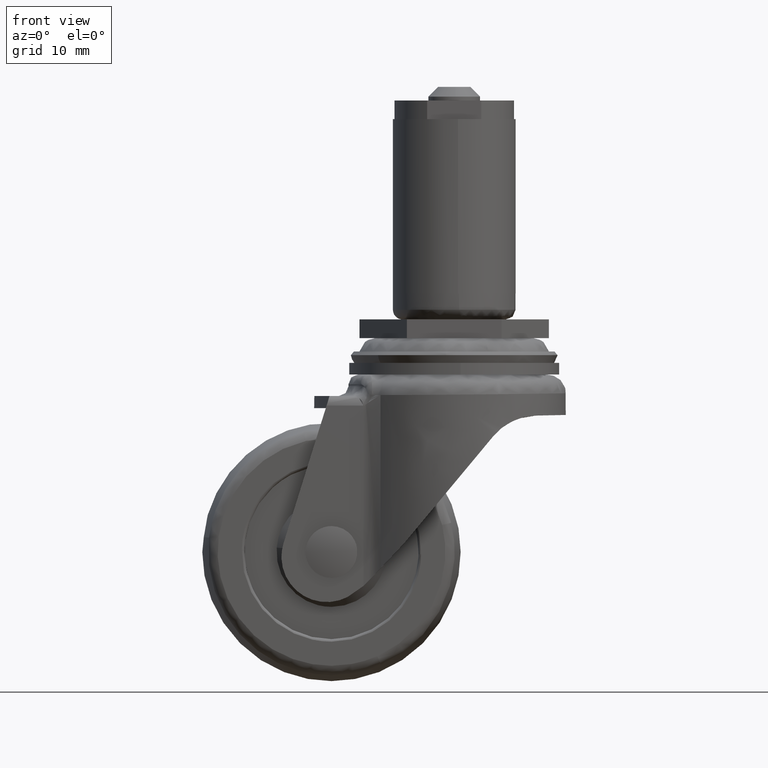
[diagram: clean part render]
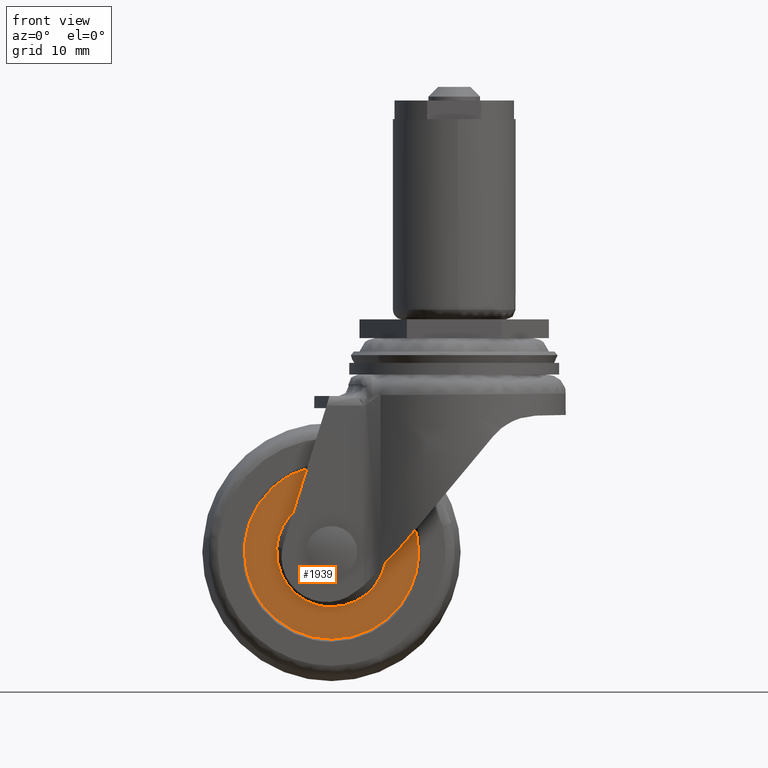
[diagram: same view with one face highlighted and labeled with its STEP entity id]
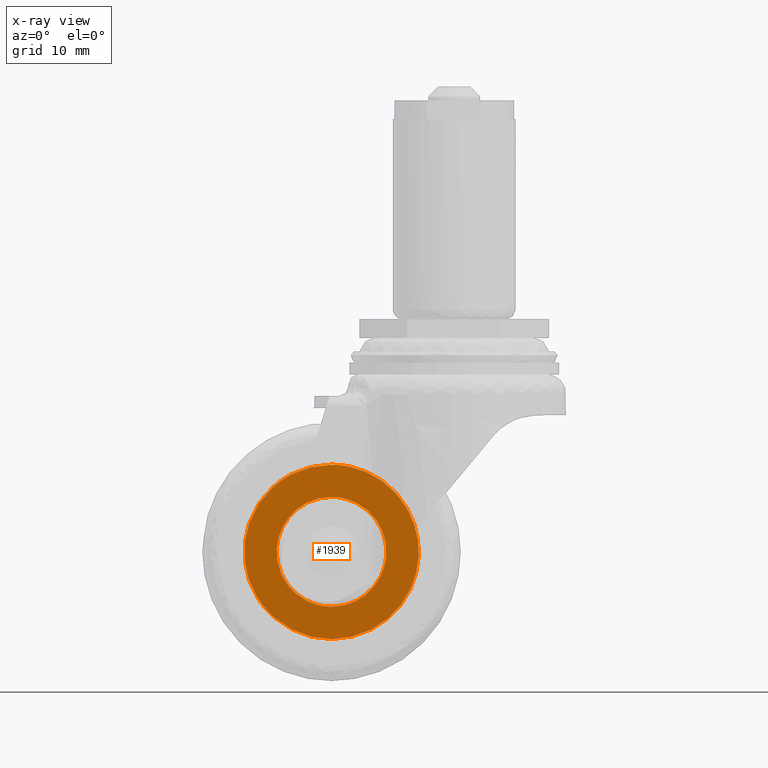
[diagram: x-ray of the same camera — body ghosted, the highlighted face saturated]
A machine part, front view. The second image highlights one B-rep face of the part: STEP entity #1939.
The next image is the same camera in x-ray: the body ghosted, the highlighted face saturated — about 0% of this face is hidden behind the body in this view.
In plain terms, the highlighted face is a freeform B-spline surface patch.
Its self-contained STEP definition (entity closure, byte-faithful):
#62=CARTESIAN_POINT('',(-19.0,-7.999986000000001,-44.500008999999991));
#63=VERTEX_POINT('',#62);
#64=CARTESIAN_POINT('',(-10.526188706410480,-7.999985999961256,-36.666898412411477));
#65=VERTEX_POINT('',#64);
#66=CARTESIAN_POINT('',(-19.0,-7.999986000000001,-44.500008999999991));
#67=CARTESIAN_POINT('',(-11.142667879985893,-7.999986000000002,-44.500008999999991));
#68=CARTESIAN_POINT('',(-10.526188706410480,-7.999985999961256,-36.666898412411484));
#76=(BOUNDED_CURVE()B_SPLINE_CURVE(2,(#66,#67,#68),.UNSPECIFIED.,.F.,.U.)B_SPLINE_CURVE_WITH_KNOTS((3,3),(0.0,0.236331300620862),.UNSPECIFIED.)CURVE()GEOMETRIC_REPRESENTATION_ITEM()RATIONAL_B_SPLINE_CURVE((1.0,0.723120658619144,0.969723356146972))REPRESENTATION_ITEM(''));
#77=EDGE_CURVE('',#63,#65,#76,.T.);
#118=CARTESIAN_POINT('',(-27.473811293589510,-7.999985999961258,-35.333091587588932));
#119=VERTEX_POINT('',#118);
#125=CARTESIAN_POINT('',(-27.473811293589510,-7.999985999961258,-35.333091587588925));
#126=CARTESIAN_POINT('',(-27.500013999999787,-7.999986000000001,-35.666028540077932));
#127=CARTESIAN_POINT('',(-27.500013999999791,-7.999986000000001,-35.999995000000197));
#128=CARTESIAN_POINT('',(-27.500013999999783,-7.999986000000002,-44.500008999999999));
#129=CARTESIAN_POINT('',(-19.0,-7.999986000000001,-44.500008999999991));
#137=(BOUNDED_CURVE()B_SPLINE_CURVE(2,(#125,#126,#127,#128,#129),.UNSPECIFIED.,.F.,.U.)B_SPLINE_CURVE_WITH_KNOTS((3,2,3),(0.736331300620862,0.750000000000000,1.0),.UNSPECIFIED.)CURVE()GEOMETRIC_REPRESENTATION_ITEM()RATIONAL_B_SPLINE_CURVE((0.969723356146971,0.983986122567403,1.0,0.707106781186547,1.0))REPRESENTATION_ITEM(''));
#138=EDGE_CURVE('',#119,#63,#137,.T.);
#161=CARTESIAN_POINT('',(-19.0,-7.999986000000001,-27.499981000000410));
#162=VERTEX_POINT('',#161);
#163=CARTESIAN_POINT('',(-10.526188706410480,-7.999985999961256,-36.666898412411484));
#164=CARTESIAN_POINT('',(-10.499986000000209,-7.999986000000001,-36.333961459922484));
#165=CARTESIAN_POINT('',(-10.499986000000209,-7.999986000000001,-35.999995000000197));
#166=CARTESIAN_POINT('',(-10.499986000000211,-7.999986000000002,-27.499981000000417));
#167=CARTESIAN_POINT('',(-19.0,-7.999986000000001,-27.499981000000410));
#175=(BOUNDED_CURVE()B_SPLINE_CURVE(2,(#163,#164,#165,#166,#167),.UNSPECIFIED.,.F.,.U.)B_SPLINE_CURVE_WITH_KNOTS((3,2,3),(0.236331300620862,0.250000000000000,0.500000000000000),.UNSPECIFIED.)CURVE()GEOMETRIC_REPRESENTATION_ITEM()RATIONAL_B_SPLINE_CURVE((0.969723356146972,0.983986122567404,1.0,0.707106781186547,1.0))REPRESENTATION_ITEM(''));
#176=EDGE_CURVE('',#65,#162,#175,.T.);
#178=CARTESIAN_POINT('',(-19.0,-7.999986000000001,-27.499981000000410));
#179=CARTESIAN_POINT('',(-26.857332120014100,-7.999986000000002,-27.499981000000414));
#180=CARTESIAN_POINT('',(-27.473811293589517,-7.999985999961258,-35.333091587588932));
#188=(BOUNDED_CURVE()B_SPLINE_CURVE(2,(#178,#179,#180),.UNSPECIFIED.,.F.,.U.)B_SPLINE_CURVE_WITH_KNOTS((3,3),(0.500000000000000,0.736331300620862),.UNSPECIFIED.)CURVE()GEOMETRIC_REPRESENTATION_ITEM()RATIONAL_B_SPLINE_CURVE((1.0,0.723120658619144,0.969723356146971))REPRESENTATION_ITEM(''));
#189=EDGE_CURVE('',#162,#119,#188,.T.);
#248=CARTESIAN_POINT('',(-27.833593508534911,-7.999986000002050,-46.208716943816611));
#249=VERTEX_POINT('',#248);
#250=CARTESIAN_POINT('',(-19.0,-7.999986000000001,-49.500008999999999));
#251=VERTEX_POINT('',#250);
#252=CARTESIAN_POINT('',(-27.833593508534918,-7.999986000002050,-46.208716943816604));
#253=CARTESIAN_POINT('',(-24.029944924863585,-7.999986000000001,-49.500008999999991));
#254=CARTESIAN_POINT('',(-19.0,-7.999986000000001,-49.500008999999999));
#262=(BOUNDED_CURVE()B_SPLINE_CURVE(2,(#252,#253,#254),.UNSPECIFIED.,.F.,.U.)B_SPLINE_CURVE_WITH_KNOTS((3,3),(0.885882135070162,1.0),.UNSPECIFIED.)CURVE()GEOMETRIC_REPRESENTATION_ITEM()RATIONAL_B_SPLINE_CURVE((0.854663299967336,0.866302604866324,1.0))REPRESENTATION_ITEM(''));
#263=EDGE_CURVE('',#249,#251,#262,.T.);
#334=CARTESIAN_POINT('',(-28.120476395702909,-7.999986000000001,-26.046739838214421));
#335=VERTEX_POINT('',#334);
#341=CARTESIAN_POINT('',(-19.0,-7.999986000000001,-22.499981000000400));
#342=VERTEX_POINT('',#341);
#343=CARTESIAN_POINT('',(-19.0,-7.999986000000001,-22.499981000000400));
#344=CARTESIAN_POINT('',(-24.249867648697691,-7.999986000000002,-22.499981000000407));
#345=CARTESIAN_POINT('',(-28.120476395702944,-7.999986000000002,-26.046739838214378));
#353=(BOUNDED_CURVE()B_SPLINE_CURVE(2,(#343,#344,#345),.UNSPECIFIED.,.F.,.U.)B_SPLINE_CURVE_WITH_KNOTS((3,3),(0.500000000000000,0.618415195959058),.UNSPECIFIED.)CURVE()GEOMETRIC_REPRESENTATION_ITEM()RATIONAL_B_SPLINE_CURVE((1.0,0.861267968396503,0.853959782458017))REPRESENTATION_ITEM(''));
#354=EDGE_CURVE('',#342,#335,#353,.T.);
#356=CARTESIAN_POINT('',(-19.0,-7.999986000000001,-49.500008999999999));
#357=CARTESIAN_POINT('',(-5.499986000000199,-7.999986000000002,-49.500009000000013));
#358=CARTESIAN_POINT('',(-5.499986000000200,-7.999986000000001,-35.999995000000197));
#359=CARTESIAN_POINT('',(-5.499986000000199,-7.999986000000002,-22.499981000000400));
#360=CARTESIAN_POINT('',(-19.0,-7.999986000000001,-22.499981000000400));
#368=(BOUNDED_CURVE()B_SPLINE_CURVE(2,(#356,#357,#358,#359,#360),.UNSPECIFIED.,.F.,.U.)B_SPLINE_CURVE_WITH_KNOTS((3,2,3),(0.0,0.250000000000000,0.500000000000000),.UNSPECIFIED.)CURVE()GEOMETRIC_REPRESENTATION_ITEM()RATIONAL_B_SPLINE_CURVE((1.0,0.707106781186548,1.0,0.707106781186548,1.0))REPRESENTATION_ITEM(''));
#369=EDGE_CURVE('',#251,#342,#368,.T.);
#392=CARTESIAN_POINT('',(-28.120476395702944,-7.999986000000002,-26.046739838214378));
#393=CARTESIAN_POINT('',(-32.500013999999801,-7.999986000000002,-30.059845972320183));
#394=CARTESIAN_POINT('',(-32.500013999999801,-7.999986000000001,-35.999995000000197));
#395=CARTESIAN_POINT('',(-32.500013999999794,-7.999986000000000,-42.170869504307689));
#396=CARTESIAN_POINT('',(-27.833593508534918,-7.999986000002050,-46.208716943816604));
#404=(BOUNDED_CURVE()B_SPLINE_CURVE(2,(#392,#393,#394,#395,#396),.UNSPECIFIED.,.F.,.U.)B_SPLINE_CURVE_WITH_KNOTS((3,2,3),(0.618415195959058,0.750000000000000,0.885882135070162),.UNSPECIFIED.)CURVE()GEOMETRIC_REPRESENTATION_ITEM()RATIONAL_B_SPLINE_CURVE((0.853959782458017,0.845838812790044,1.0,0.840804176320224,0.854663299967336))REPRESENTATION_ITEM(''));
#405=EDGE_CURVE('',#335,#249,#404,.T.);
#1922=CARTESIAN_POINT('',(-33.847232807616351,-7.999986000000001,-50.848659078983957));
#1923=CARTESIAN_POINT('',(-33.847232807616351,-7.999986000000001,-21.151328989823948));
#1924=CARTESIAN_POINT('',(-4.151402080689845,-7.999986000000001,-50.848659078983957));
#1925=CARTESIAN_POINT('',(-4.151402080689845,-7.999986000000001,-21.151328989823948));
#1926=B_SPLINE_SURFACE_WITH_KNOTS('',1,1,((#1922,#1924),(#1923,#1925)),.UNSPECIFIED.,.F.,.F.,.U.,(2,2),(2,2),(0.0,29.697330089160008),(0.0,29.695830726926498),.UNSPECIFIED.);
#1927=ORIENTED_EDGE('',*,*,#369,.T.);
#1928=ORIENTED_EDGE('',*,*,#354,.T.);
#1929=ORIENTED_EDGE('',*,*,#405,.T.);
#1930=ORIENTED_EDGE('',*,*,#263,.T.);
#1931=EDGE_LOOP('',(#1927,#1928,#1929,#1930));
#1932=FACE_OUTER_BOUND('',#1931,.T.);
#1933=ORIENTED_EDGE('',*,*,#189,.F.);
#1934=ORIENTED_EDGE('',*,*,#176,.F.);
#1935=ORIENTED_EDGE('',*,*,#77,.F.);
#1936=ORIENTED_EDGE('',*,*,#138,.F.);
#1937=EDGE_LOOP('',(#1933,#1934,#1935,#1936));
#1938=FACE_BOUND('',#1937,.T.);
#1939=ADVANCED_FACE('',(#1932,#1938),#1926,.F.);